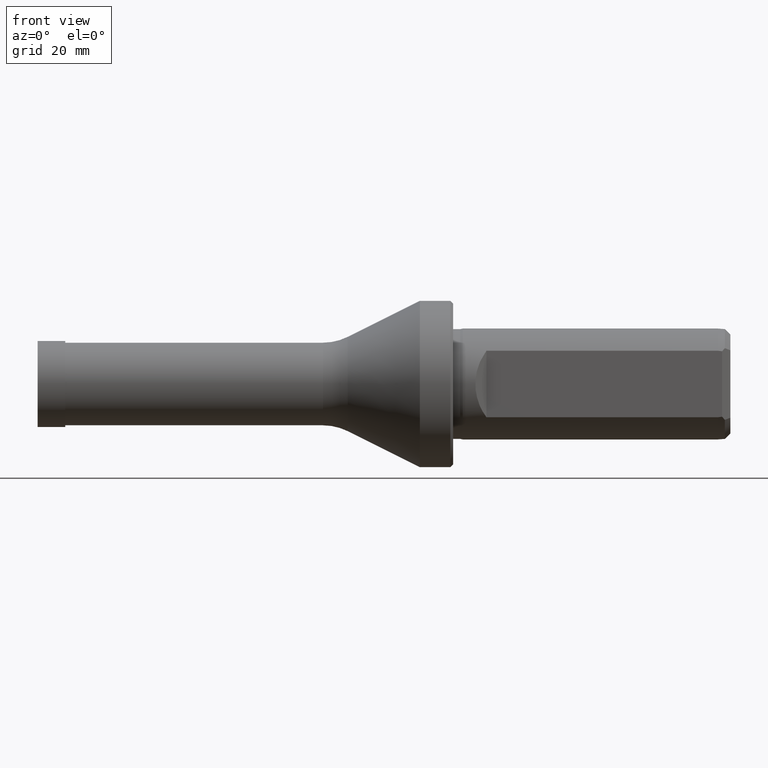
[diagram: clean part render]
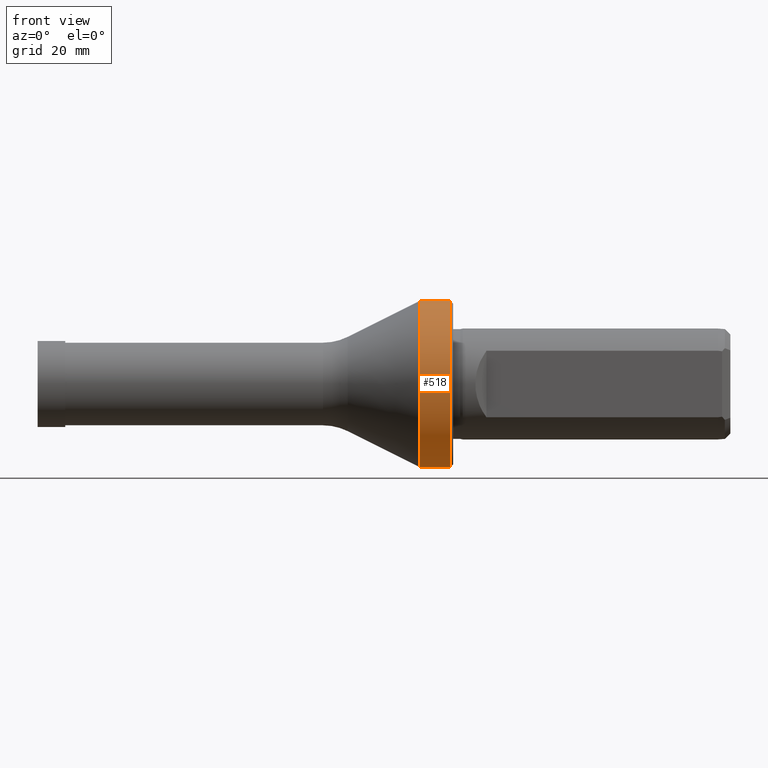
[diagram: same view with one face highlighted and labeled with its STEP entity id]
A machine part, front view. The second image highlights one B-rep face of the part: STEP entity #518.
In plain terms, the highlighted cylindrical surface (partial cylindrical patch) has radius 15 mm, axis along (-1, -0, -0).
Its self-contained STEP definition (entity closure, byte-faithful):
#45 = CARTESIAN_POINT ( 'NONE',  ( 68.45000000000000300, 1.836970198721029600E-015, 14.99999999999999800 ) ) ;
#53 = CARTESIAN_POINT ( 'NONE',  ( 68.45000000000000300, 0.0000000000000000000, 0.0000000000000000000 ) ) ;
#59 = EDGE_CURVE ( 'NONE', #247, #634, #102, .T. ) ;
#102 = LINE ( 'NONE', #947, #527 ) ;
#243 = AXIS2_PLACEMENT_3D ( 'NONE', #387, #955, #300 ) ;
#247 = VERTEX_POINT ( 'NONE', #1076 ) ;
#300 = DIRECTION ( 'NONE',  ( 0.0000000000000000000, 0.0000000000000000000, 1.000000000000000000 ) ) ;
#387 = CARTESIAN_POINT ( 'NONE',  ( 73.94999999999998900, 0.0000000000000000000, 0.0000000000000000000 ) ) ;
#427 = AXIS2_PLACEMENT_3D ( 'NONE', #53, #704, #1090 ) ;
#436 = EDGE_CURVE ( 'NONE', #628, #247, #1034, .T. ) ;
#489 = ORIENTED_EDGE ( 'NONE', *, *, #436, .T. ) ;
#500 = EDGE_CURVE ( 'NONE', #662, #634, #656, .T. ) ;
#515 = DIRECTION ( 'NONE',  ( 0.0000000000000000000, 0.0000000000000000000, 1.000000000000000000 ) ) ;
#518 = ADVANCED_FACE ( 'NONE', ( #923 ), #1025, .T. ) ;
#527 = VECTOR ( 'NONE', #763, 1000.000000000000000 ) ;
#539 = DIRECTION ( 'NONE',  ( -1.000000000000000000, -0.0000000000000000000, -0.0000000000000000000 ) ) ;
#600 = CARTESIAN_POINT ( 'NONE',  ( 73.94999999999998900, 1.836970198721029600E-015, -15.00000000000000000 ) ) ;
#604 = CARTESIAN_POINT ( 'NONE',  ( 0.0000000000000000000, 0.0000000000000000000, 0.0000000000000000000 ) ) ;
#628 = VERTEX_POINT ( 'NONE', #600 ) ;
#634 = VERTEX_POINT ( 'NONE', #45 ) ;
#656 = CIRCLE ( 'NONE', #427, 14.99999999999999800 ) ;
#662 = VERTEX_POINT ( 'NONE', #691 ) ;
#680 = AXIS2_PLACEMENT_3D ( 'NONE', #604, #1233, #515 ) ;
#691 = CARTESIAN_POINT ( 'NONE',  ( 68.45000000000000300, 0.0000000000000000000, -14.99999999999999800 ) ) ;
#704 = DIRECTION ( 'NONE',  ( -1.000000000000000000, -0.0000000000000000000, -0.0000000000000000000 ) ) ;
#712 = EDGE_CURVE ( 'NONE', #628, #662, #932, .T. ) ;
#761 = ORIENTED_EDGE ( 'NONE', *, *, #500, .F. ) ;
#763 = DIRECTION ( 'NONE',  ( -1.000000000000000000, -0.0000000000000000000, -0.0000000000000000000 ) ) ;
#832 = EDGE_LOOP ( 'NONE', ( #988, #489, #918, #761 ) ) ;
#918 = ORIENTED_EDGE ( 'NONE', *, *, #59, .T. ) ;
#923 = FACE_OUTER_BOUND ( 'NONE', #832, .T. ) ;
#932 = LINE ( 'NONE', #1123, #1016 ) ;
#947 = CARTESIAN_POINT ( 'NONE',  ( 0.0000000000000000000, 0.0000000000000000000, 15.00000000000000000 ) ) ;
#955 = DIRECTION ( 'NONE',  ( -1.000000000000000000, -0.0000000000000000000, -0.0000000000000000000 ) ) ;
#988 = ORIENTED_EDGE ( 'NONE', *, *, #712, .F. ) ;
#1016 = VECTOR ( 'NONE', #539, 1000.000000000000000 ) ;
#1025 = CYLINDRICAL_SURFACE ( 'NONE', #680, 15.00000000000000000 ) ;
#1034 = CIRCLE ( 'NONE', #243, 15.00000000000000000 ) ;
#1076 = CARTESIAN_POINT ( 'NONE',  ( 73.94999999999998900, 0.0000000000000000000, 15.00000000000000000 ) ) ;
#1090 = DIRECTION ( 'NONE',  ( 0.0000000000000000000, 0.0000000000000000000, 1.000000000000000000 ) ) ;
#1123 = CARTESIAN_POINT ( 'NONE',  ( 0.0000000000000000000, 1.836970198721029600E-015, -15.00000000000000000 ) ) ;
#1233 = DIRECTION ( 'NONE',  ( -1.000000000000000000, -0.0000000000000000000, -0.0000000000000000000 ) ) ;